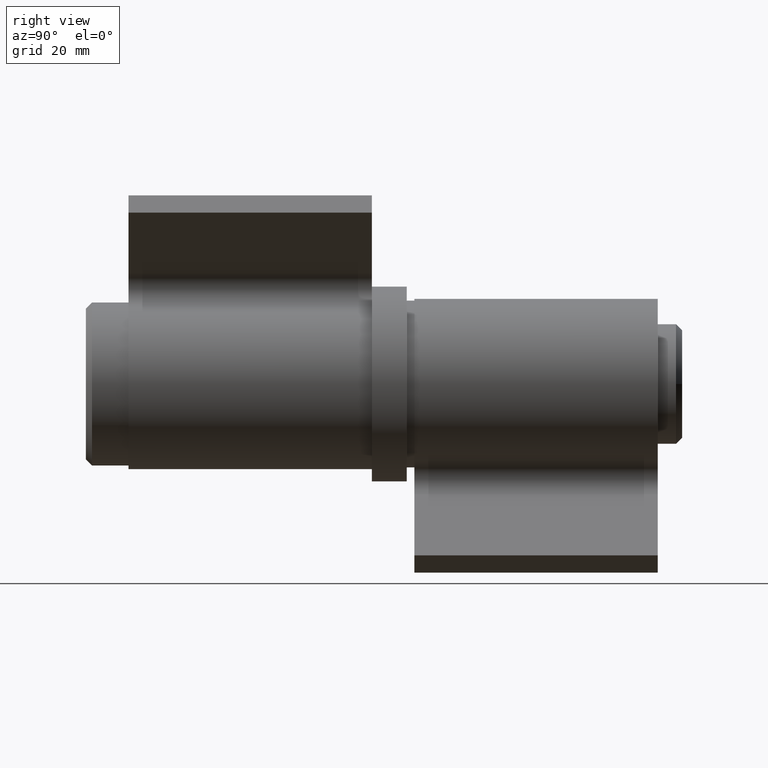
[diagram: clean part render]
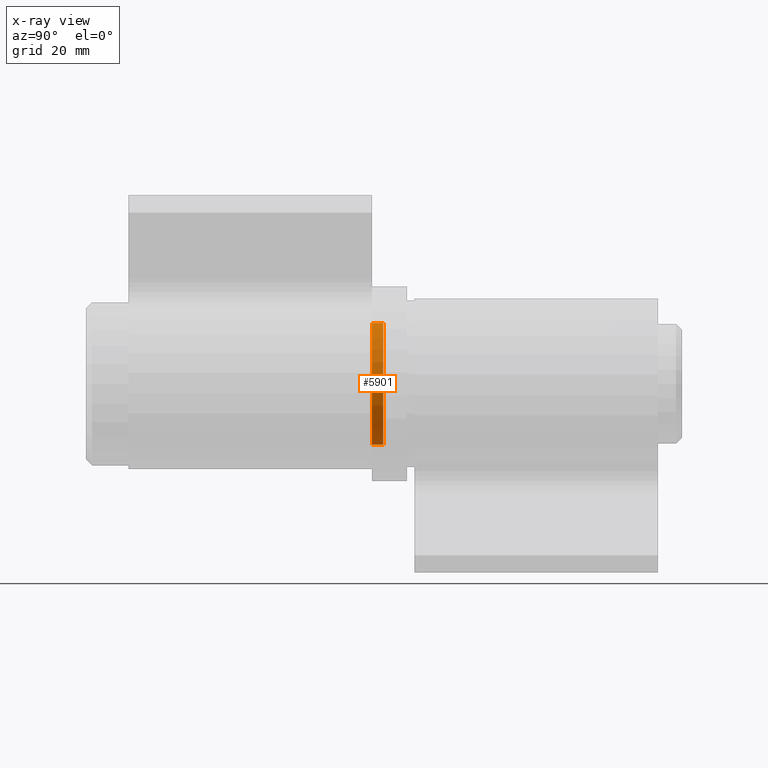
[diagram: x-ray — body ghosted, one internal face saturated and labeled with its STEP entity id]
A machine part, right view, then the same camera in x-ray: the body is ghosted and one INTERNAL B-rep face — a face not visible from any outside direction — is saturated and labeled: STEP entity #5901.
In plain terms, the highlighted cylindrical surface (bore or boss wall) has radius 10 mm, axis along (-0, -1, -0).
Its self-contained STEP definition (entity closure, byte-faithful):
#2 = VERTEX_POINT ( 'NONE', #870 ) ;
#870 = CARTESIAN_POINT ( 'NONE',  ( 0.000000000000000000, -2.875000000000000000, 10.00000000000000000 ) ) ;
#1102 = DIRECTION ( 'NONE',  ( 0.000000000000000000, 0.000000000000000000, -1.000000000000000000 ) ) ;
#1391 = AXIS2_PLACEMENT_3D ( 'NONE', #8846, #5138, #7023 ) ;
#1748 = AXIS2_PLACEMENT_3D ( 'NONE', #2916, #8777, #1102 ) ;
#1799 = FACE_OUTER_BOUND ( 'NONE', #7057, .T. ) ;
#1848 = EDGE_CURVE ( 'NONE', #2, #2, #12168, .T. ) ;
#2872 = CIRCLE ( 'NONE', #1391, 10.00000000000000000 ) ;
#2916 = CARTESIAN_POINT ( 'NONE',  ( 0.000000000000000000, 2.875000000000000000, 0.000000000000000000 ) ) ;
#2938 = EDGE_LOOP ( 'NONE', ( #4392 ) ) ;
#4392 = ORIENTED_EDGE ( 'NONE', *, *, #5587, .T. ) ;
#5138 = DIRECTION ( 'NONE',  ( 0.000000000000000000, 1.000000000000000000, 0.000000000000000000 ) ) ;
#5587 = EDGE_CURVE ( 'NONE', #6033, #6033, #2872, .T. ) ;
#5901 = ADVANCED_FACE ( 'NONE', ( #1799, #12507 ), #12212, .F. ) ;
#6033 = VERTEX_POINT ( 'NONE', #8490 ) ;
#6350 = AXIS2_PLACEMENT_3D ( 'NONE', #6553, #7658, #9504 ) ;
#6553 = CARTESIAN_POINT ( 'NONE',  ( 0.000000000000000000, -2.875000000000000000, 0.000000000000000000 ) ) ;
#7023 = DIRECTION ( 'NONE',  ( 0.000000000000000000, 0.000000000000000000, 1.000000000000000000 ) ) ;
#7057 = EDGE_LOOP ( 'NONE', ( #11994 ) ) ;
#7658 = DIRECTION ( 'NONE',  ( 0.000000000000000000, 1.000000000000000000, 0.000000000000000000 ) ) ;
#8490 = CARTESIAN_POINT ( 'NONE',  ( 0.000000000000000000, -1.000000000000000000, 10.00000000000000000 ) ) ;
#8777 = DIRECTION ( 'NONE',  ( -0.000000000000000000, -1.000000000000000000, -0.000000000000000000 ) ) ;
#8846 = CARTESIAN_POINT ( 'NONE',  ( 0.000000000000000000, -1.000000000000000000, 0.000000000000000000 ) ) ;
#9504 = DIRECTION ( 'NONE',  ( 0.000000000000000000, 0.000000000000000000, 1.000000000000000000 ) ) ;
#11994 = ORIENTED_EDGE ( 'NONE', *, *, #1848, .F. ) ;
#12168 = CIRCLE ( 'NONE', #6350, 10.00000000000000000 ) ;
#12212 = CYLINDRICAL_SURFACE ( 'NONE', #1748, 10.00000000000000000 ) ;
#12507 = FACE_OUTER_BOUND ( 'NONE', #2938, .T. ) ;